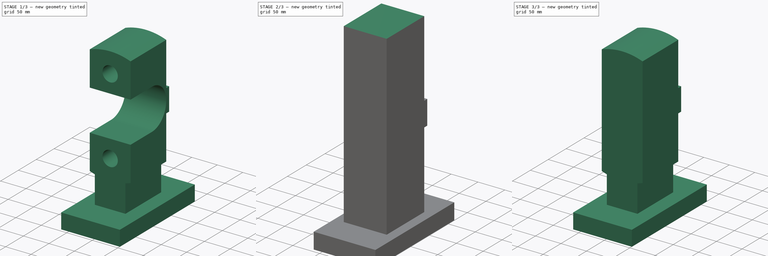
[diagram: build sequence overview — one tinted view per stage of 3, left to right]
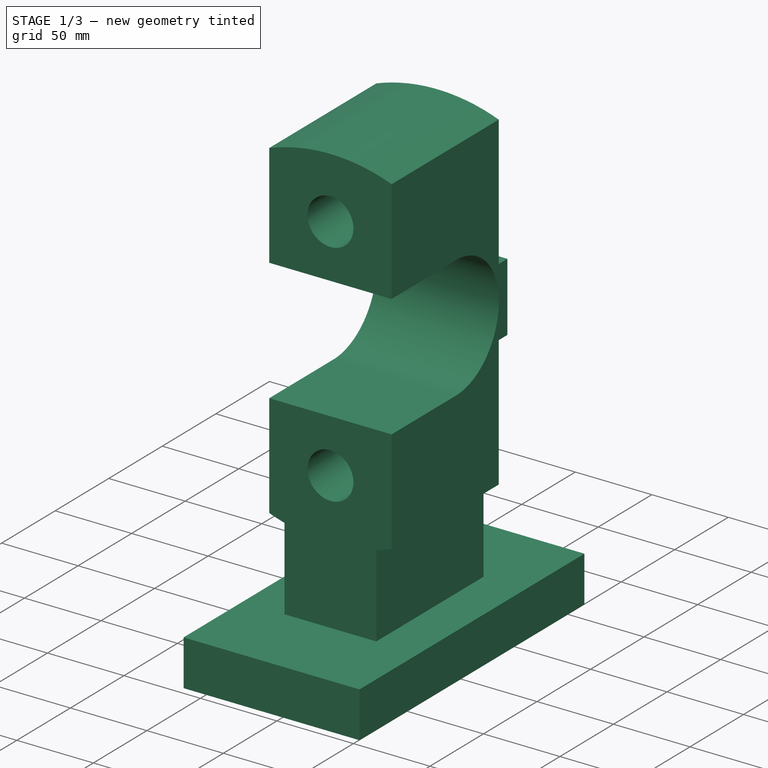
[diagram: stage 1 of 3 — iso view after this stage's code; geometry added in this stage tinted green]
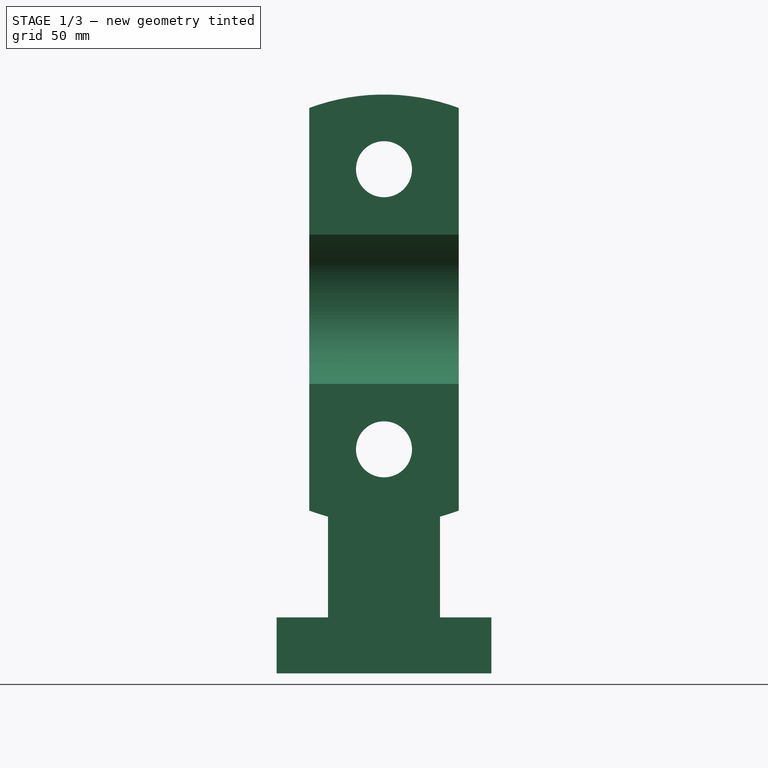
[diagram: stage 1 of 3 — front view after this stage's code; geometry added in this stage tinted green]
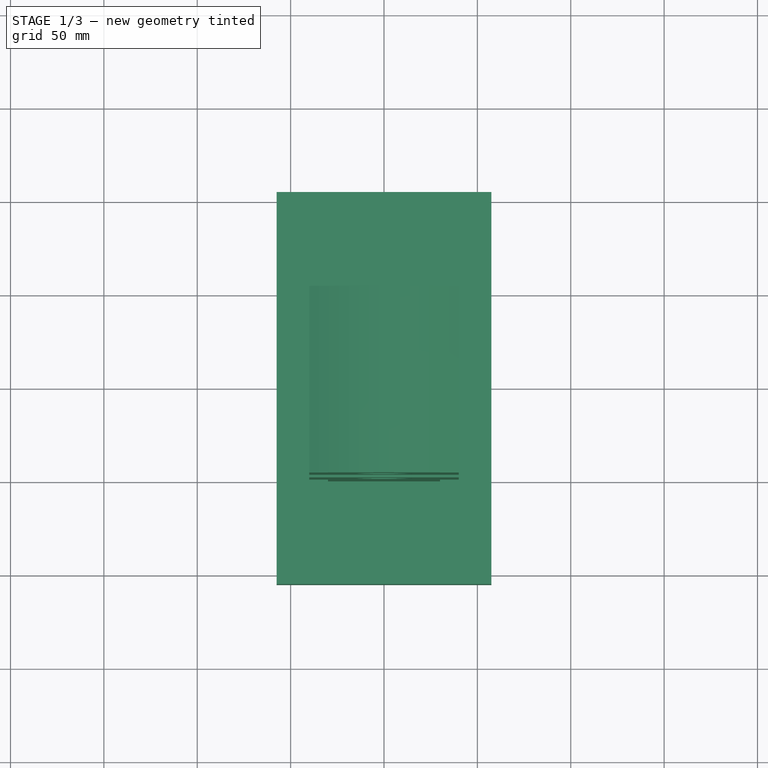
[diagram: stage 1 of 3 — top view after this stage's code; geometry added in this stage tinted green]
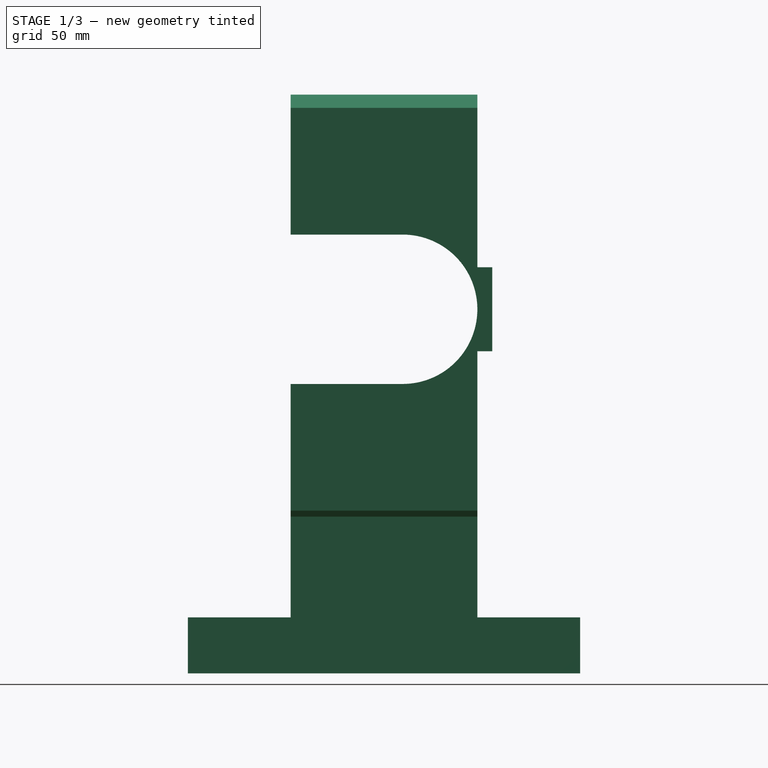
[diagram: stage 1 of 3 — right view after this stage's code; geometry added in this stage tinted green]
FCSTD DOCUMENT  (FreeCAD 0.16RUnknown)
Label: cuerpo
License: All rights reserved
LicenseURL: http://en.wikipedia.org/wiki/All_rights_reserved
objects: Sketcher::SketchObject×7, PartDesign::Pad×3, PartDesign::Pocket×3, Part::Feature×1
note: 20 computed .brp shape members not serialized (recipe doc carries the construction recipe); baked Part::Feature solids carry a one-line shape summary decoded from their .brp

FEATURE [Part::Feature] Pad002001  label="Pad003"
  shape: bbox 115 x 210 x 310 mm, 19 faces (baked)
FEATURE [Sketcher::SketchObject] Sketch007
  ExternalGeometry = -> [Pad002001]
  Placement = pos=(40,0,0) rot=(0.57735,0.57735,0.57735;2.0944rad)
  Support = -> Pad002001 [Face19]
  sketch-geometry (6):
    g0: Circle [constr] CenterX=10 CenterY=195 CenterZ=0 NormalX=0 NormalY=0 NormalZ=1 Radius=40
    g1: LineSegment [constr] StartX=50 StartY=217.5 StartZ=0 EndX=50 EndY=172.5 EndZ=0
    g2: LineSegment StartX=-71.8219 StartY=235 StartZ=0 EndX=9.99994 EndY=235 EndZ=0
    g3: LineSegment StartX=9.99994 StartY=155 StartZ=0 EndX=-71.8219 EndY=155 EndZ=0
    g4: LineSegment StartX=-71.8219 StartY=155 StartZ=0 EndX=-71.8219 EndY=235 EndZ=0
    g5: ArcOfCircle CenterX=10 CenterY=195 CenterZ=0 NormalX=0 NormalY=0 NormalZ=1 Radius=40 StartAngle=4.71239 EndAngle=7.85398
  constraints (15):
    c: DistanceY(g-3,g0) = 165
    c: Radius(g0) = 40
    c: Coincident(g1,g-5)
    c: Coincident(g1,g-4)
    c: Tangent(g1,g0)
    c: Coincident(g3,g4)
    c: Coincident(g4,g2)
    c: Horizontal(g2)
    c: Horizontal(g3)
    c: Vertical(g4)
    c: PointOnObject(g3,g0)
    c: PointOnObject(g2,g0)
    c: Tangent(g2,g0)
    c: Coincident(g5,g0)
    c: Equal(g5,g0)
FEATURE [PartDesign::Pocket] Pocket001
  Length = 5
  Sketch = -> Sketch007
  Type = 1
FEATURE [Sketcher::SketchObject] Sketch008
  ExternalGeometry = -> [Pocket001]
  Placement = pos=(0,-50,0) rot=(1,0,0;1.5708rad)
  Support = -> Pocket001 [Face7]
  sketch-geometry (2):
    g0: Circle CenterX=0 CenterY=120 CenterZ=0 NormalX=0 NormalY=0 NormalZ=1 Radius=15
    g1: Circle CenterX=0 CenterY=270 CenterZ=0 NormalX=0 NormalY=0 NormalZ=1 Radius=15
  constraints (6):
    c: PointOnObject(g0,g-2)
    c: PointOnObject(g1,g-2)
    c: Radius(g0) = 15
    c: Equal(g0,g1)
    c: DistanceY(g0,g1) = 150
    c: DistanceY(g-3,g0) = 90
FEATURE [PartDesign::Pocket] Pocket002
  Length = 5
  Sketch = -> Sketch008
  Type = 1
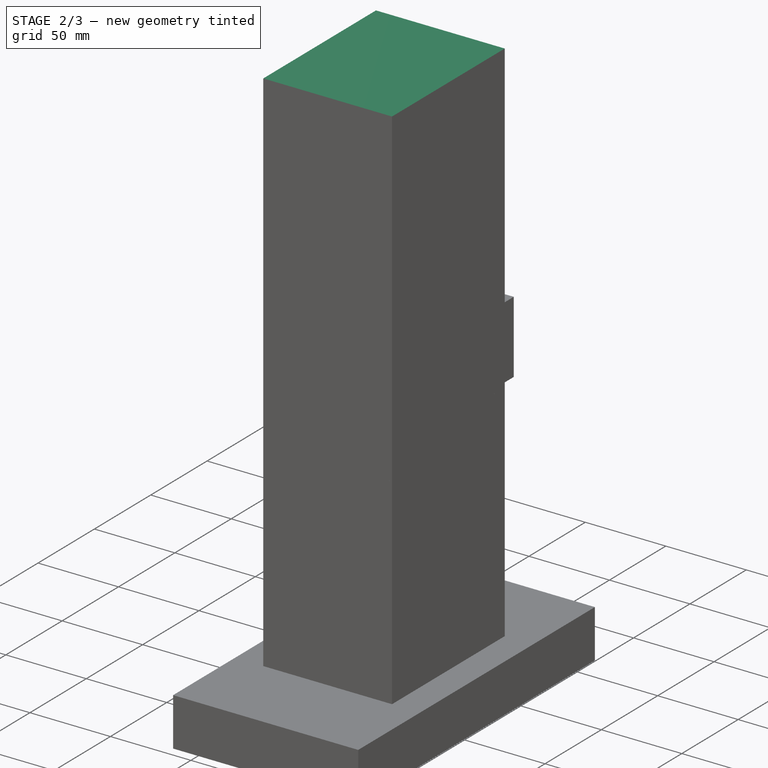
[diagram: stage 2 of 3 — iso view after this stage's code; geometry added in this stage tinted green]
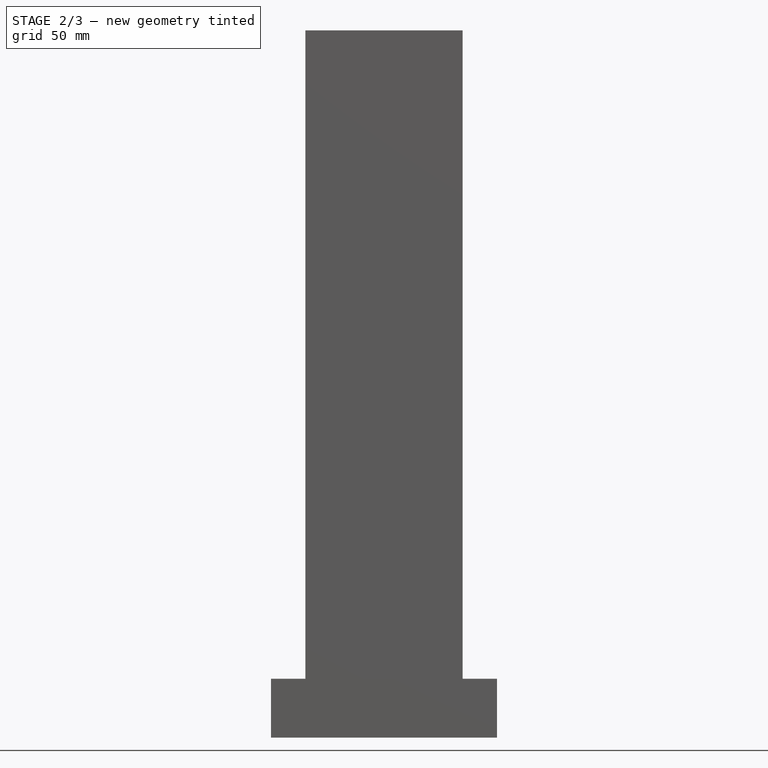
[diagram: stage 2 of 3 — front view after this stage's code; geometry added in this stage tinted green]
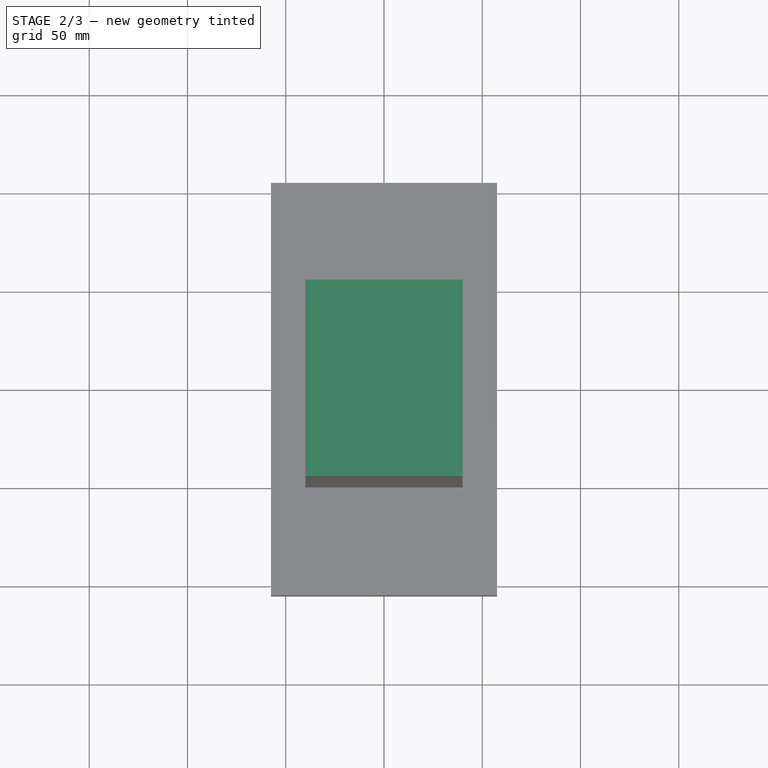
[diagram: stage 2 of 3 — top view after this stage's code; geometry added in this stage tinted green]
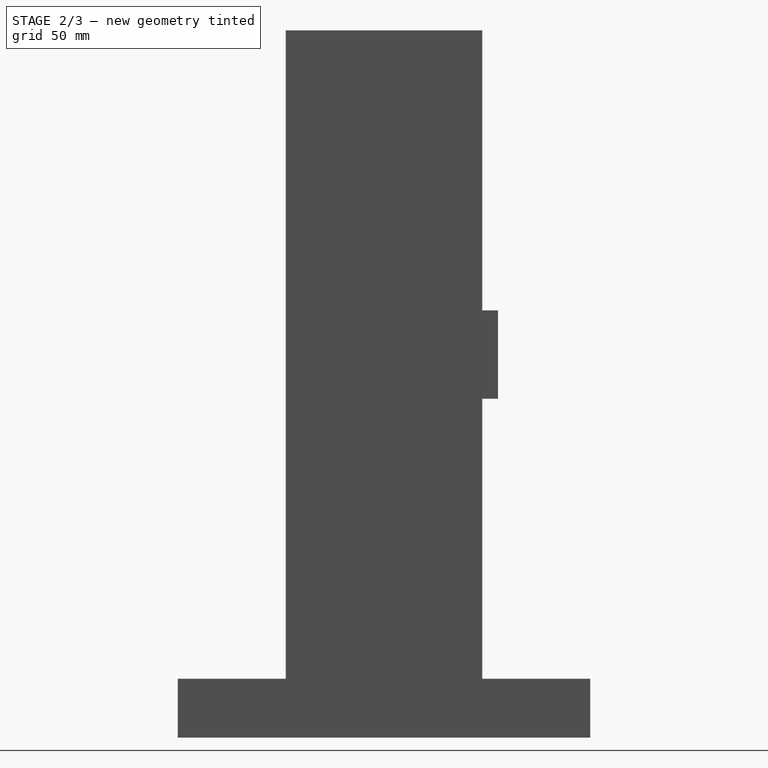
[diagram: stage 2 of 3 — right view after this stage's code; geometry added in this stage tinted green]
FEATURE [Sketcher::SketchObject] Sketch
  sketch-geometry (4):
    g0: LineSegment StartX=-57.5 StartY=105 StartZ=0 EndX=57.5 EndY=105 EndZ=0
    g1: LineSegment StartX=57.5 StartY=105 StartZ=0 EndX=57.5 EndY=-105 EndZ=0
    g2: LineSegment StartX=57.5 StartY=-105 StartZ=0 EndX=-57.5 EndY=-105 EndZ=0
    g3: LineSegment StartX=-57.5 StartY=-105 StartZ=0 EndX=-57.5 EndY=105 EndZ=0
  constraints (12):
    c: Coincident(g0,g1)
    c: Coincident(g1,g2)
    c: Coincident(g2,g3)
    c: Coincident(g3,g0)
    c: Horizontal(g0)
    c: Horizontal(g2)
    c: Vertical(g1)
    c: Vertical(g3)
    c: Symmetric(g1,g2,g-2)
    c: Symmetric(g0,g1,g-1)
    c: DistanceX(g2,g2) = 115
    c: DistanceY(g3,g3) = 210
FEATURE [PartDesign::Pad] Pad
  Length = 30
  Length2 = 100
  Sketch = -> Sketch
  Type = 0
FEATURE [Sketcher::SketchObject] Sketch001
  Placement = pos=(0,0,30) rot=(0,0,1;0rad)
  Support = -> Pad [Face6]
  sketch-geometry (4):
    g0: LineSegment StartX=-40 StartY=50 StartZ=0 EndX=40 EndY=50 EndZ=0
    g1: LineSegment StartX=40 StartY=50 StartZ=0 EndX=40 EndY=-50 EndZ=0
    g2: LineSegment StartX=40 StartY=-50 StartZ=0 EndX=-40 EndY=-50 EndZ=0
    g3: LineSegment StartX=-40 StartY=-50 StartZ=0 EndX=-40 EndY=50 EndZ=0
  constraints (12):
    c: Coincident(g0,g1)
    c: Coincident(g1,g2)
    c: Coincident(g2,g3)
    c: Coincident(g3,g0)
    c: Horizontal(g0)
    c: Horizontal(g2)
    c: Vertical(g1)
    c: Vertical(g3)
    c: DistanceX(g2,g2) = 80
    c: Symmetric(g1,g2,g-2)
    c: DistanceY(g1,g1) = 100
    c: Symmetric(g0,g1,g-1)
FEATURE [PartDesign::Pad] Pad001
  Length = 330
  Length2 = 100
  Sketch = -> Sketch001
  Type = 0
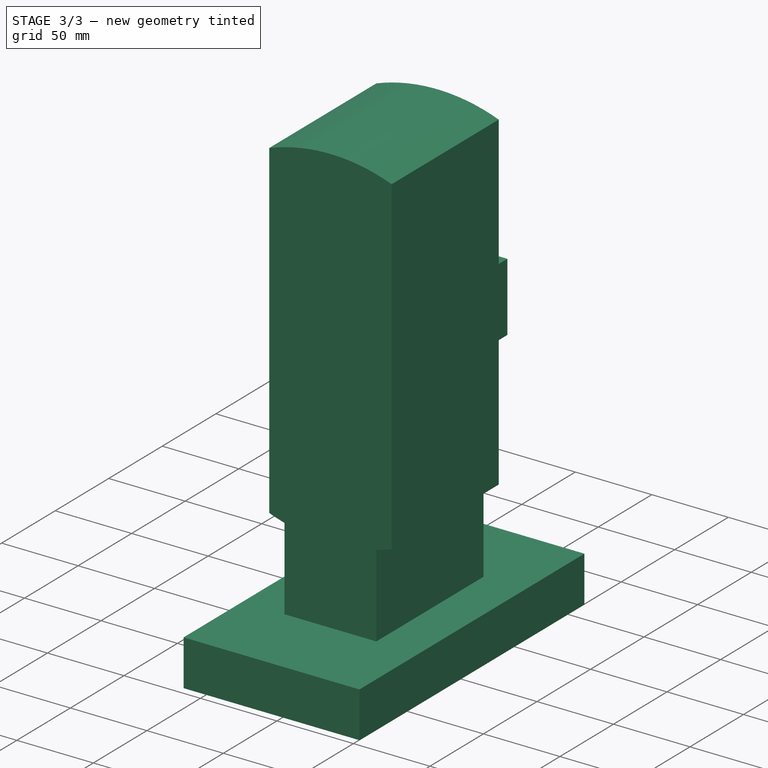
[diagram: stage 3 of 3 — iso view after this stage's code; geometry added in this stage tinted green]
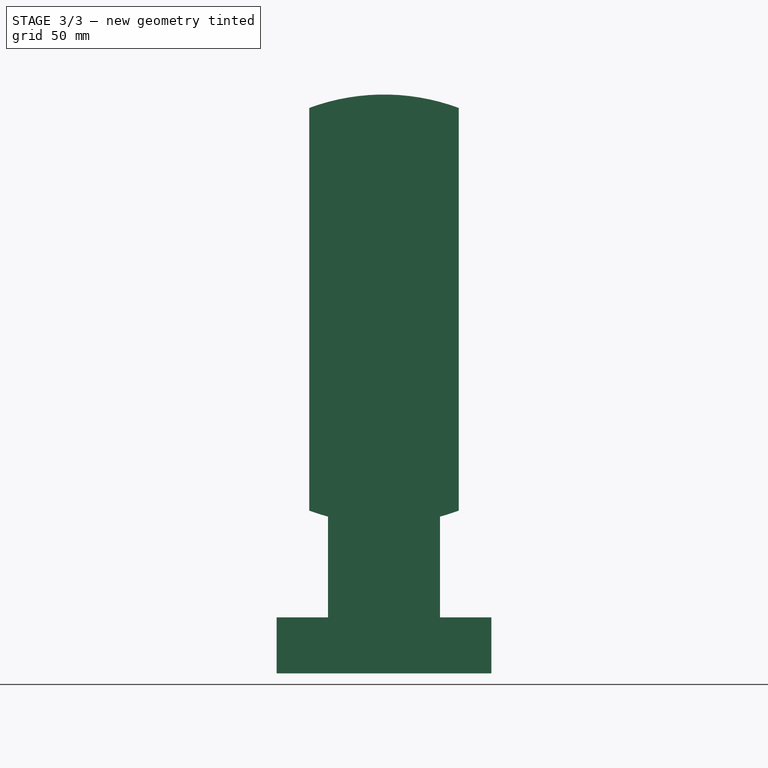
[diagram: stage 3 of 3 — front view after this stage's code; geometry added in this stage tinted green]
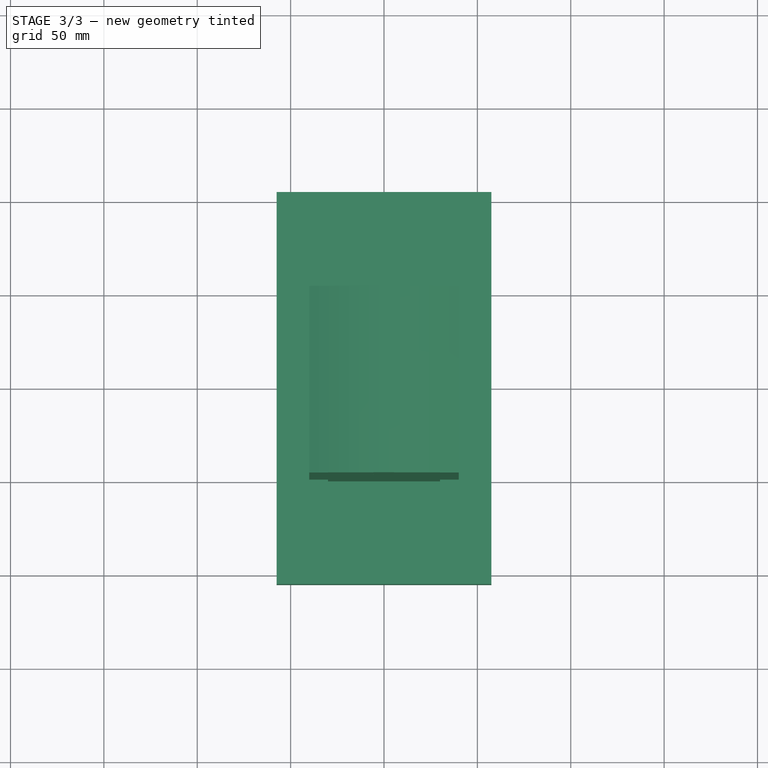
[diagram: stage 3 of 3 — top view after this stage's code; geometry added in this stage tinted green]
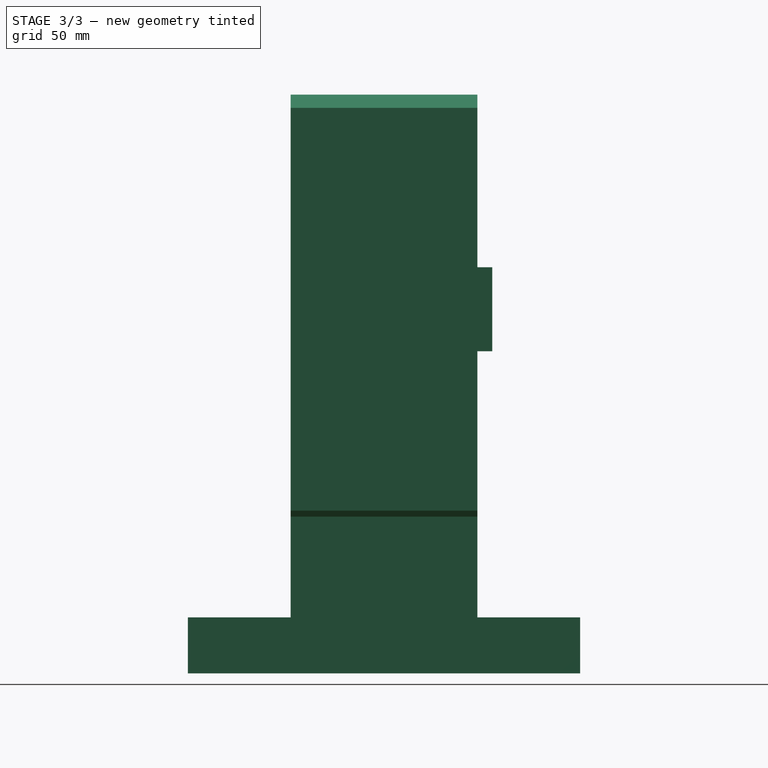
[diagram: stage 3 of 3 — right view after this stage's code; geometry added in this stage tinted green]
FEATURE [Sketcher::SketchObject] Sketch004
  ExternalGeometry = -> [Pad001]
  Placement = pos=(0,-50,0) rot=(1,0,0;1.5708rad)
  Support = -> Pad001 [Face9]
  sketch-geometry (17):
    g0: Circle [constr] CenterX=0 CenterY=195 CenterZ=0 NormalX=0 NormalY=0 NormalZ=1 Radius=115
    g1: ArcOfCircle CenterX=0 CenterY=195 CenterZ=0 NormalX=0 NormalY=0 NormalZ=1 Radius=115 StartAngle=1.09334 EndAngle=2.0036
    g2: LineSegment StartX=-48.2327 StartY=299.396 StartZ=0 EndX=-47.346 EndY=365.601 EndZ=0
    g3: LineSegment StartX=-47.346 StartY=365.601 StartZ=0 EndX=58.3303 EndY=365.601 EndZ=0
    g4: LineSegment StartX=58.3303 StartY=365.601 StartZ=0 EndX=52.845 EndY=297.139 EndZ=0
    g5: LineSegment [constr] StartX=-30 StartY=83.982 StartZ=0 EndX=30 EndY=83.982 EndZ=0
    g6: LineSegment [constr] StartX=30 StartY=83.982 StartZ=0 EndX=30 EndY=30 EndZ=0
    g7: LineSegment [constr] StartX=30 StartY=30 StartZ=0 EndX=-30 EndY=30 EndZ=0
    g8: LineSegment [constr] StartX=-30 StartY=30 StartZ=0 EndX=-30 EndY=83.982 EndZ=0
    g9: LineSegment StartX=-47.1957 StartY=30 StartZ=0 EndX=-30 EndY=30 EndZ=0
    g10: LineSegment StartX=-30 StartY=30 StartZ=0 EndX=-30 EndY=83.982 EndZ=0
    g11: LineSegment StartX=57.5 StartY=95.4071 StartZ=0 EndX=57.5 EndY=30 EndZ=0
    g12: LineSegment StartX=57.5 StartY=30 StartZ=0 EndX=30 EndY=30 EndZ=0
    g13: LineSegment StartX=30 StartY=30 StartZ=0 EndX=30 EndY=83.982 EndZ=0
    g14: LineSegment StartX=-47.1957 StartY=30 StartZ=0 EndX=-47.1957 EndY=90.1307 EndZ=0
    g15: ArcOfCircle CenterX=0 CenterY=195 CenterZ=0 NormalX=0 NormalY=0 NormalZ=1 Radius=115 StartAngle=4.2895 EndAngle=4.44847
    g16: ArcOfCircle CenterX=0 CenterY=195 CenterZ=0 NormalX=0 NormalY=0 NormalZ=1 Radius=115 StartAngle=4.97631 EndAngle=5.23599
  constraints (41):
    c: PointOnObject(g0,g-2)
    c: DistanceY(g-3,g0) = 165
    c: Radius(g0) = 115
    c: Coincident(g1,g0)
    c: Equal(g1,g0)
    c: Coincident(g1,g2)
    c: Coincident(g2,g3)
    c: Horizontal(g3)
    c: Coincident(g3,g4)
    c: Coincident(g4,g1)
    c: Coincident(g5,g6)
    c: Coincident(g6,g7)
    c: Coincident(g7,g8)
    c: Coincident(g8,g5)
    c: Horizontal(g7)
    c: Vertical(g6)
    c: Vertical(g8)
    c: PointOnObject(g6,g-3)
    c: Symmetric(g5,g5,g-2)
    c: DistanceX(g5,g5) = 60
    c: PointOnObject(g5,g0)
    c: Horizontal(g9)
    c: Coincident(g9,g10)
    c: Vertical(g10)
    c: Vertical(g11)
    c: Coincident(g11,g12)
    c: Coincident(g12,g13)
    c: Vertical(g13)
    c: Coincident(g14,g9)
    c: Coincident(g15,g0)
    c: Coincident(g16,g0)
    c: Coincident(g13,g5)
    c: Coincident(g16,g5)
    c: Coincident(g16,g11)
    c: Coincident(g11,g-3)
    c: Coincident(g12,g6)
    c: Coincident(g15,g5)
    c: Coincident(g10,g5)
    c: Coincident(g9,g7)
    c: Coincident(g14,g15)
    c: Vertical(g14)
FEATURE [PartDesign::Pocket] Pocket
  Length = 5
  Sketch = -> Sketch004
  Type = 1
FEATURE [Sketcher::SketchObject] Sketch005
  ExternalGeometry = -> [Pocket]
  Placement = pos=(40,0,0) rot=(0.57735,0.57735,0.57735;2.0944rad)
  Support = -> Pocket [Face20]
  sketch-geometry (1):
    g0: Circle [constr] CenterX=1.32666 CenterY=195 CenterZ=0 NormalX=0 NormalY=0 NormalZ=1 Radius=40
  constraints (2):
    c: DistanceY(g-3,g0) = 165
    c: Radius(g0) = 40
FEATURE [Sketcher::SketchObject] Sketch006
  ExternalGeometry = -> [Pocket]
  Placement = pos=(40,0,0) rot=(0.57735,0.57735,0.57735;2.0944rad)
  Support = -> Pocket [Face20]
  sketch-geometry (6):
    g0: LineSegment StartX=50 StartY=217.5 StartZ=0 EndX=58 EndY=217.5 EndZ=0
    g1: LineSegment StartX=58 StartY=217.5 StartZ=0 EndX=58 EndY=172.5 EndZ=0
    g2: LineSegment StartX=58 StartY=172.5 StartZ=0 EndX=50 EndY=172.5 EndZ=0
    g3: LineSegment StartX=50 StartY=172.5 StartZ=0 EndX=50 EndY=217.5 EndZ=0
    g4: GeomPoint [constr] X=58 Y=195 Z=0
    g5: LineSegment [constr] StartX=41.2426 StartY=195 StartZ=0 EndX=103.255 EndY=195 EndZ=0
  constraints (16):
    c: Coincident(g0,g1)
    c: Coincident(g1,g2)
    c: Coincident(g2,g3)
    c: Coincident(g3,g0)
    c: Horizontal(g0)
    c: Horizontal(g2)
    c: Vertical(g1)
    c: Vertical(g3)
    c: PointOnObject(g2,g-3)
    c: PointOnObject(g4,g1)
    c: DistanceY(g-4,g4) = 165
    c: PointOnObject(g4,g5)
    c: Horizontal(g5)
    c: Symmetric(g1,g0,g5)
    c: DistanceY(g1,g0) = 45
    c: DistanceX(g0,g0) = 8
FEATURE [PartDesign::Pad] Pad002
  Length = 80
  Length2 = 100
  Reversed = true
  Sketch = -> Sketch006
  Type = 0
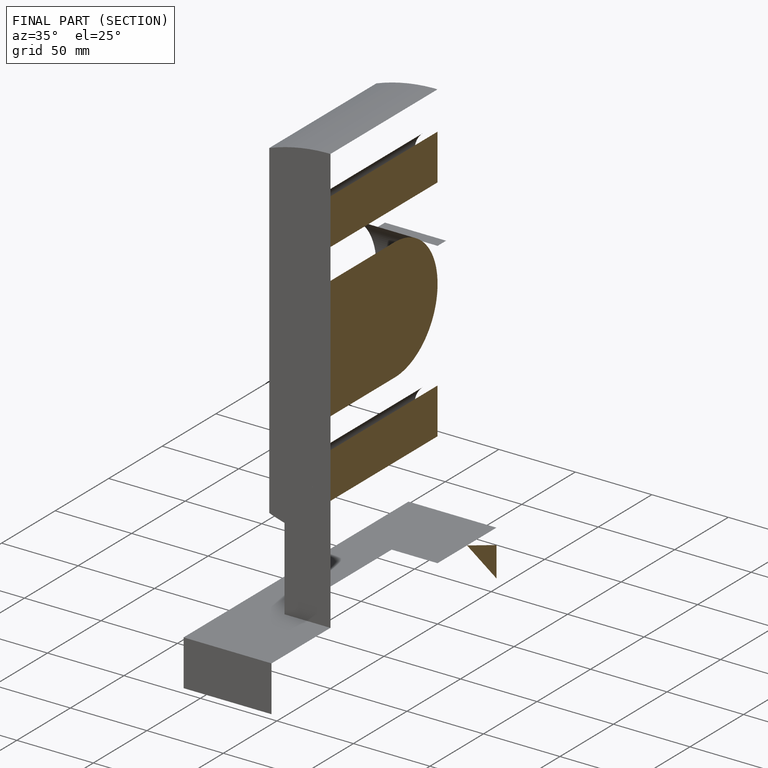
[diagram: finished part — half-section view (interior)]
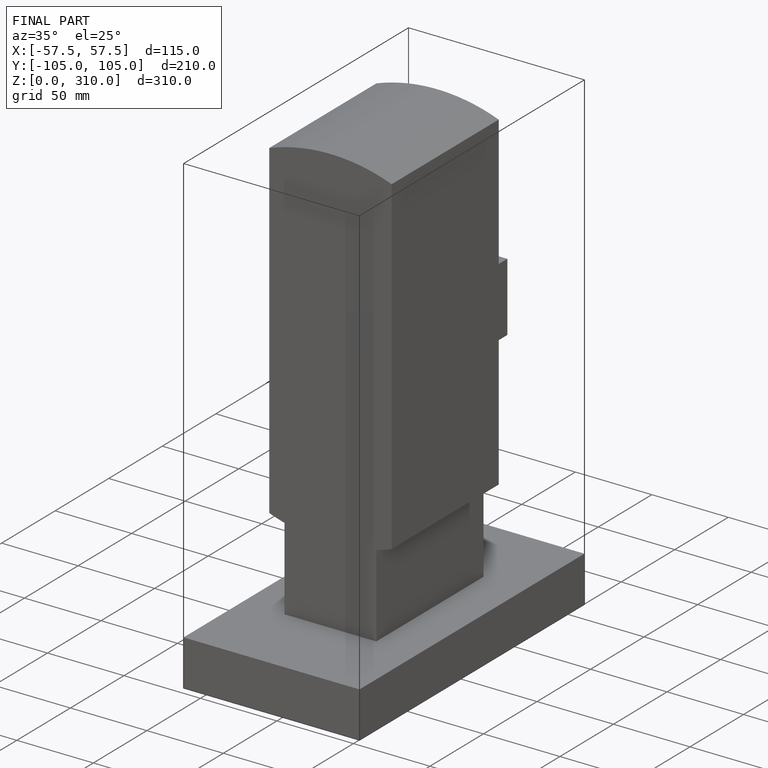
[diagram: finished part — iso view with bounding-box wireframe]
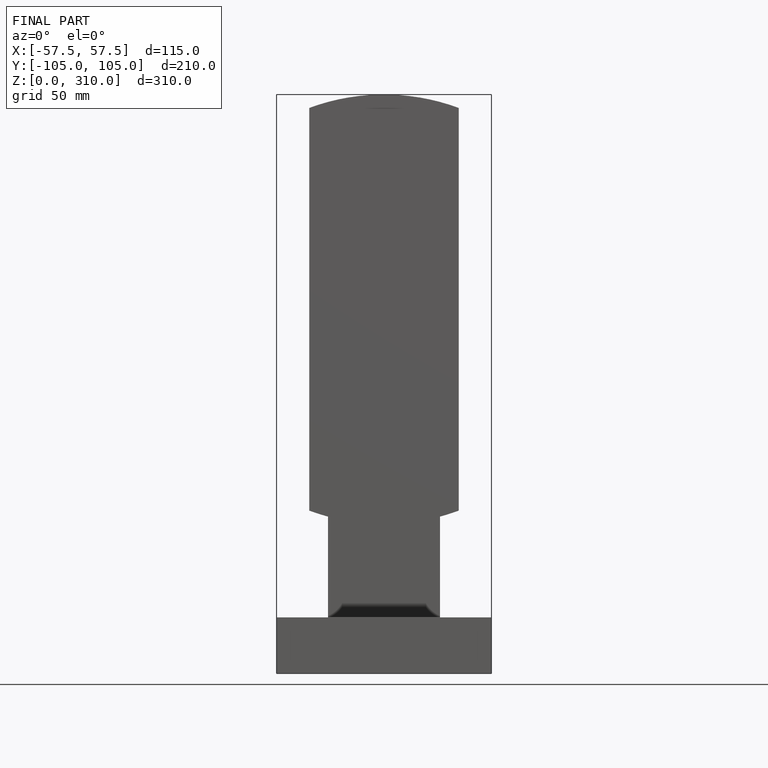
[diagram: finished part — front view with bounding-box wireframe]
